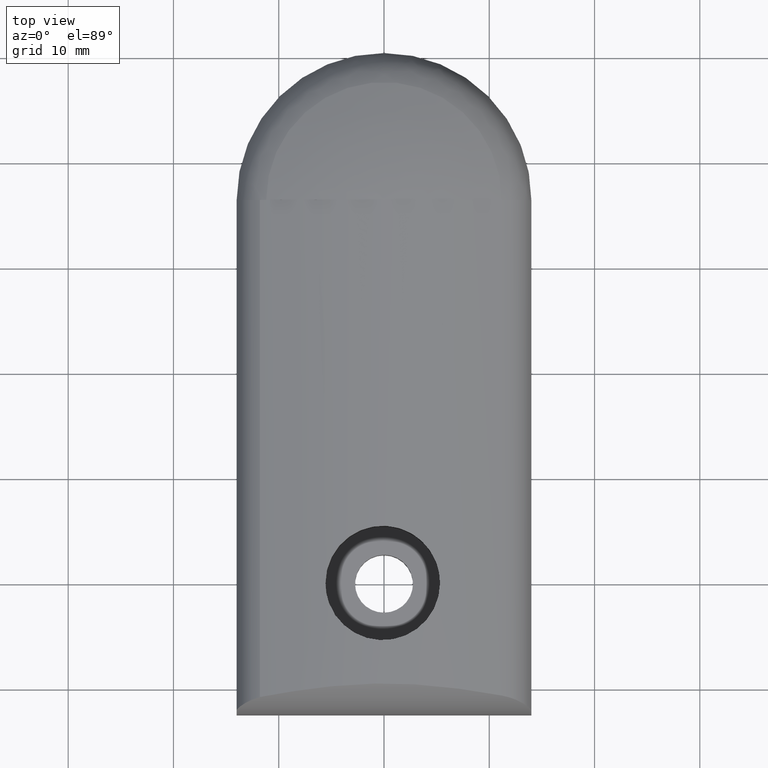
[diagram: clean part render]
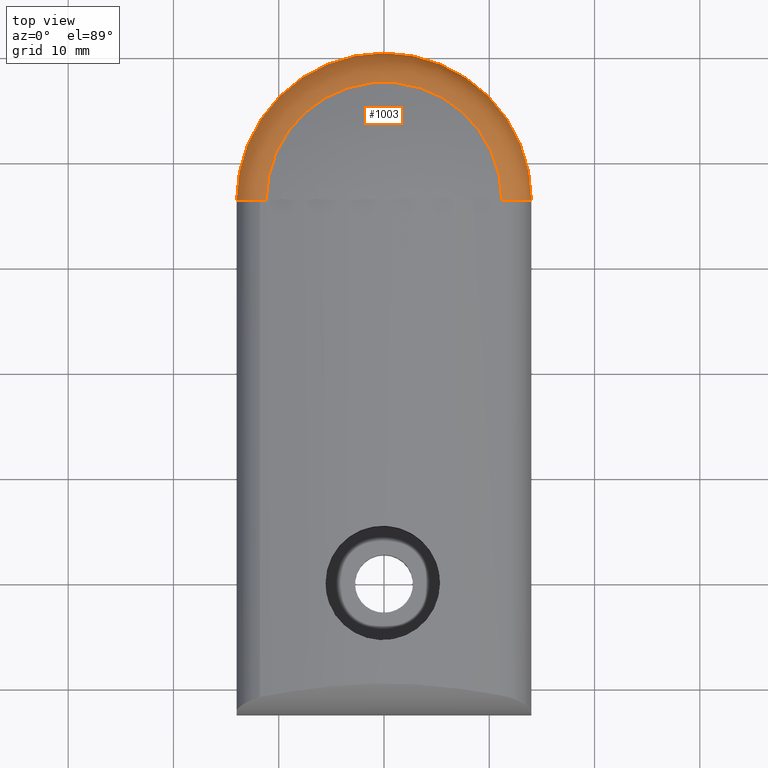
[diagram: same view with one face highlighted and labeled with its STEP entity id]
A machine part, top view. The second image highlights one B-rep face of the part: STEP entity #1003.
In plain terms, the highlighted face is a freeform B-spline surface patch.
Its self-contained STEP definition (entity closure, byte-faithful):
#139=CARTESIAN_POINT('',(14.0,36.422453215370808,3.369595101929928));
#140=VERTEX_POINT('',#139);
#192=CARTESIAN_POINT('',(-14.0,36.422453215370808,3.369595101929924));
#193=VERTEX_POINT('',#192);
#200=CARTESIAN_POINT('',(6.951837E-030,36.422453215370865,3.369595101929928));
#201=DIRECTION('',(9.074402E-017,1.287936E-031,-1.0));
#202=DIRECTION('',(1.0,-4.060244E-015,9.074402E-017));
#203=AXIS2_PLACEMENT_3D('',#200,#201,#202);
#204=CIRCLE('',#203,14.0);
#205=EDGE_CURVE('',#193,#140,#204,.T.);
#943=CARTESIAN_POINT('',(14.000000000007232,36.422453215370808,3.369595101893857));
#944=CARTESIAN_POINT('',(14.000000000007290,50.422453215378042,3.369595101893857));
#945=CARTESIAN_POINT('',(6.051910E-014,50.422453215378098,3.369595101893856));
#946=CARTESIAN_POINT('',(-14.000000000007169,50.422453215378155,3.369595101893854));
#947=CARTESIAN_POINT('',(-14.000000000007232,36.422453215370929,3.369595101893854));
#948=CARTESIAN_POINT('',(13.522497611621063,36.422453215370808,5.751114809685905));
#949=CARTESIAN_POINT('',(13.522497611621120,49.944950826991871,5.751114809685905));
#950=CARTESIAN_POINT('',(6.012142E-014,49.944950826991928,5.751114809685904));
#951=CARTESIAN_POINT('',(-13.522497611621001,49.944950826991985,5.751114809685902));
#952=CARTESIAN_POINT('',(-13.522497611621063,36.422453215370929,5.751114809685902));
#953=CARTESIAN_POINT('',(11.189168411753428,36.422453215370808,6.425814368424073));
#954=CARTESIAN_POINT('',(11.189168411753485,47.611621627124237,6.425814368424073));
#955=CARTESIAN_POINT('',(5.952069E-014,47.611621627124293,6.425814368424071));
#956=CARTESIAN_POINT('',(-11.189168411753368,47.611621627124350,6.425814368424070));
#957=CARTESIAN_POINT('',(-11.189168411753428,36.422453215370929,6.425814368424069));
#965=(BOUNDED_SURFACE()B_SPLINE_SURFACE(2,2,((#943,#948,#953),(#944,#949,#954),(#945,#950,#955),(#946,#951,#956),(#947,#952,#957)),.UNSPECIFIED.,.F.,.F.,.U.)B_SPLINE_SURFACE_WITH_KNOTS((3,2,3),(3,3),(0.0,0.500000000000000,1.0),(0.0,1.0),.UNSPECIFIED.)GEOMETRIC_REPRESENTATION_ITEM()RATIONAL_B_SPLINE_SURFACE(((1.0,0.854754621014894,1.0),(0.707106781186548,0.604402788770169,0.707106781186548),(1.0,0.854754621014894,1.0),(0.707106781186548,0.604402788770169,0.707106781186548),(1.0,0.854754621014894,1.0)))REPRESENTATION_ITEM('')SURFACE());
#966=ORIENTED_EDGE('',*,*,#205,.F.);
#967=CARTESIAN_POINT('',(-11.787311582500024,36.422453215370979,6.199646873590275));
#968=VERTEX_POINT('',#967);
#969=CARTESIAN_POINT('',(-10.078057300642287,36.422453215370979,2.583232931581730));
#970=DIRECTION('',(6.123234E-017,1.0,6.162976E-033));
#971=DIRECTION('',(-0.277777777777786,1.700898E-017,0.960645359210586));
#972=AXIS2_PLACEMENT_3D('',#969,#970,#971);
#973=CIRCLE('',#972,4.0);
#974=EDGE_CURVE('',#193,#968,#973,.T.);
#975=ORIENTED_EDGE('',*,*,#974,.T.);
#976=CARTESIAN_POINT('',(-11.189168411753599,36.422453215370922,6.425814368424387));
#977=VERTEX_POINT('',#976);
#978=CARTESIAN_POINT('',(-10.078057300642287,36.422453215370979,2.583232931581730));
#979=DIRECTION('',(6.123234E-017,1.0,6.162976E-033));
#980=DIRECTION('',(-0.277777777777786,1.700898E-017,0.960645359210586));
#981=AXIS2_PLACEMENT_3D('',#978,#979,#980);
#982=CIRCLE('',#981,4.0);
#983=EDGE_CURVE('',#968,#977,#982,.T.);
#984=ORIENTED_EDGE('',*,*,#983,.T.);
#985=CARTESIAN_POINT('',(11.189168411753599,36.422453215370808,6.425814368424389));
#986=VERTEX_POINT('',#985);
#987=CARTESIAN_POINT('',(2.563798E-030,36.422453215370865,6.425814368424387));
#988=DIRECTION('',(-1.224647E-016,0.0,1.0));
#989=DIRECTION('',(1.0,-5.080218E-015,1.224647E-016));
#990=AXIS2_PLACEMENT_3D('',#987,#988,#989);
#991=CIRCLE('',#990,11.189168411753599);
#992=EDGE_CURVE('',#986,#977,#991,.T.);
#993=ORIENTED_EDGE('',*,*,#992,.F.);
#994=CARTESIAN_POINT('',(10.078057300642286,36.422453215370808,2.583232931581730));
#995=DIRECTION('',(6.123234E-017,-1.0,6.162976E-033));
#996=DIRECTION('',(0.277777777777786,1.700898E-017,0.960645359210586));
#997=AXIS2_PLACEMENT_3D('',#994,#995,#996);
#998=CIRCLE('',#997,4.0);
#999=EDGE_CURVE('',#140,#986,#998,.T.);
#1000=ORIENTED_EDGE('',*,*,#999,.F.);
#1001=EDGE_LOOP('',(#966,#975,#984,#993,#1000));
#1002=FACE_OUTER_BOUND('',#1001,.T.);
#1003=ADVANCED_FACE('',(#1002),#965,.T.);